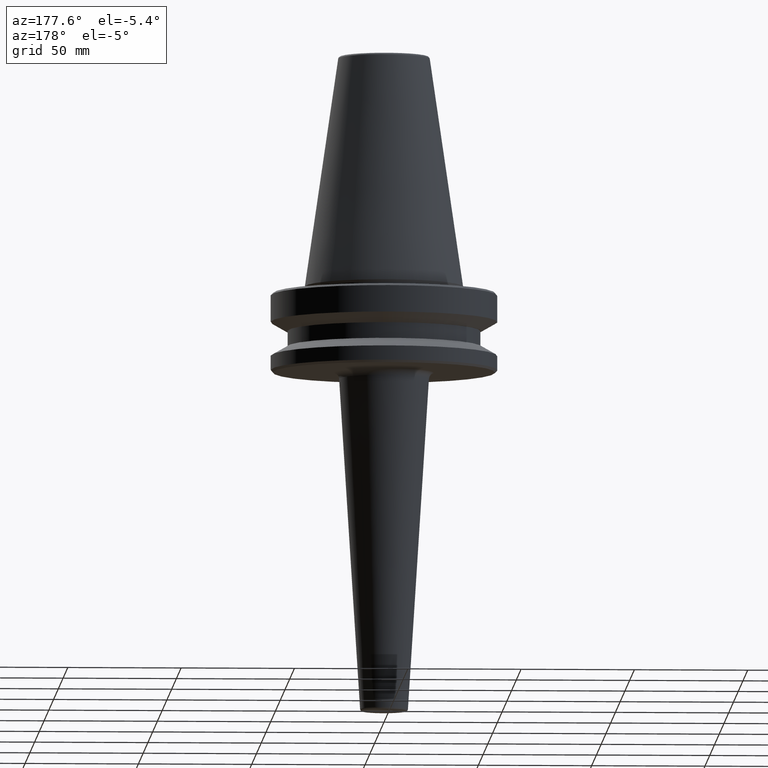
[diagram: clean part render]
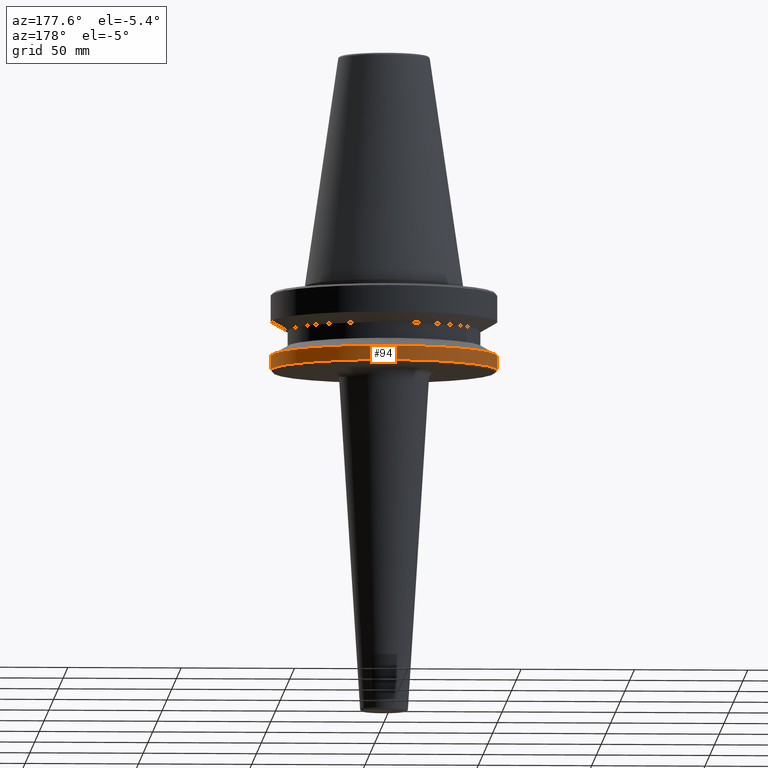
[diagram: same view with one face highlighted and labeled with its STEP entity id]
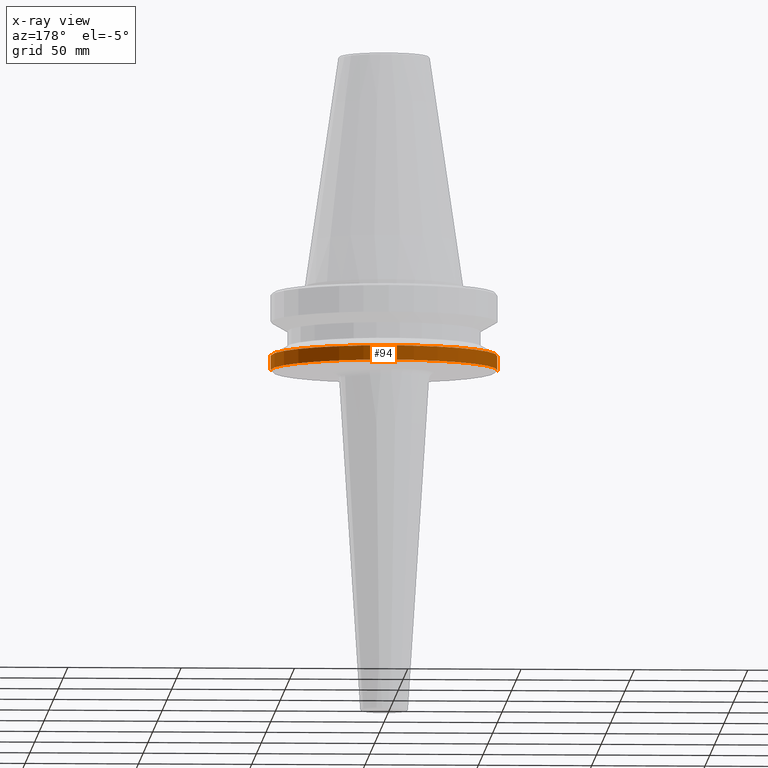
[diagram: x-ray of the same camera — body ghosted, the highlighted face saturated]
A machine part, auxiliary view. The second image highlights one B-rep face of the part: STEP entity #94.
The next image is the same camera in x-ray: the body ghosted, the highlighted face saturated — about 0% of this face is hidden behind the body in this view.
In plain terms, the highlighted cylindrical surface (partial cylindrical patch) has radius 50 mm, axis along (-0, -0, 1).
Its self-contained STEP definition (entity closure, byte-faithful):
#34 = DIRECTION ( 'NONE',  ( -0.0000000000000000000, -0.0000000000000000000, 1.000000000000000000 ) ) ;
#85 = CIRCLE ( 'NONE', #119, 50.00000000000000000 ) ;
#89 = CIRCLE ( 'NONE', #512, 50.00000000000000000 ) ;
#94 = ADVANCED_FACE ( 'NONE', ( #438 ), #813, .T. ) ;
#95 = DIRECTION ( 'NONE',  ( 1.000000000000000000, 0.0000000000000000000, 0.0000000000000000000 ) ) ;
#103 = CARTESIAN_POINT ( 'NONE',  ( 0.0000000000000000000, 0.0000000000000000000, 124.5046326327850600 ) ) ;
#118 = ORIENTED_EDGE ( 'NONE', *, *, #841, .F. ) ;
#119 = AXIS2_PLACEMENT_3D ( 'NONE', #805, #34, #144 ) ;
#144 = DIRECTION ( 'NONE',  ( 1.000000000000000000, 0.0000000000000000000, 0.0000000000000000000 ) ) ;
#181 = AXIS2_PLACEMENT_3D ( 'NONE', #103, #236, #754 ) ;
#236 = DIRECTION ( 'NONE',  ( -0.0000000000000000000, -0.0000000000000000000, 1.000000000000000000 ) ) ;
#239 = DIRECTION ( 'NONE',  ( -0.0000000000000000000, -0.0000000000000000000, 1.000000000000000000 ) ) ;
#254 = VECTOR ( 'NONE', #997, 1000.000000000000000 ) ;
#274 = DIRECTION ( 'NONE',  ( -0.0000000000000000000, -0.0000000000000000000, 1.000000000000000000 ) ) ;
#318 = CARTESIAN_POINT ( 'NONE',  ( 50.00000000000000000, 0.0000000000000000000, -37.00000000000002100 ) ) ;
#438 = FACE_OUTER_BOUND ( 'NONE', #555, .T. ) ;
#475 = LINE ( 'NONE', #658, #254 ) ;
#509 = CARTESIAN_POINT ( 'NONE',  ( -50.00000000000000000, 6.123233995736766100E-015, -30.69977999677324500 ) ) ;
#512 = AXIS2_PLACEMENT_3D ( 'NONE', #816, #274, #95 ) ;
#522 = EDGE_CURVE ( 'NONE', #567, #547, #89, .T. ) ;
#547 = VERTEX_POINT ( 'NONE', #666 ) ;
#555 = EDGE_LOOP ( 'NONE', ( #790, #629, #118, #702 ) ) ;
#567 = VERTEX_POINT ( 'NONE', #318 ) ;
#613 = VERTEX_POINT ( 'NONE', #689 ) ;
#629 = ORIENTED_EDGE ( 'NONE', *, *, #892, .T. ) ;
#637 = VECTOR ( 'NONE', #239, 1000.000000000000000 ) ;
#658 = CARTESIAN_POINT ( 'NONE',  ( -50.00000000000000000, 6.123233995736766100E-015, 124.5046326327850600 ) ) ;
#666 = CARTESIAN_POINT ( 'NONE',  ( -50.00000000000000000, 6.123233995736766100E-015, -37.00000000000002100 ) ) ;
#689 = CARTESIAN_POINT ( 'NONE',  ( 50.00000000000000000, 0.0000000000000000000, -30.69977999677324500 ) ) ;
#701 = EDGE_CURVE ( 'NONE', #567, #613, #993, .T. ) ;
#702 = ORIENTED_EDGE ( 'NONE', *, *, #701, .F. ) ;
#754 = DIRECTION ( 'NONE',  ( 1.000000000000000000, 0.0000000000000000000, 0.0000000000000000000 ) ) ;
#783 = VERTEX_POINT ( 'NONE', #509 ) ;
#790 = ORIENTED_EDGE ( 'NONE', *, *, #522, .T. ) ;
#805 = CARTESIAN_POINT ( 'NONE',  ( 0.0000000000000000000, 0.0000000000000000000, -30.69977999677324500 ) ) ;
#813 = CYLINDRICAL_SURFACE ( 'NONE', #181, 50.00000000000000000 ) ;
#816 = CARTESIAN_POINT ( 'NONE',  ( 0.0000000000000000000, 0.0000000000000000000, -37.00000000000002100 ) ) ;
#841 = EDGE_CURVE ( 'NONE', #613, #783, #85, .T. ) ;
#869 = CARTESIAN_POINT ( 'NONE',  ( 50.00000000000000000, 0.0000000000000000000, 124.5046326327850600 ) ) ;
#892 = EDGE_CURVE ( 'NONE', #547, #783, #475, .T. ) ;
#993 = LINE ( 'NONE', #869, #637 ) ;
#997 = DIRECTION ( 'NONE',  ( -0.0000000000000000000, -0.0000000000000000000, 1.000000000000000000 ) ) ;